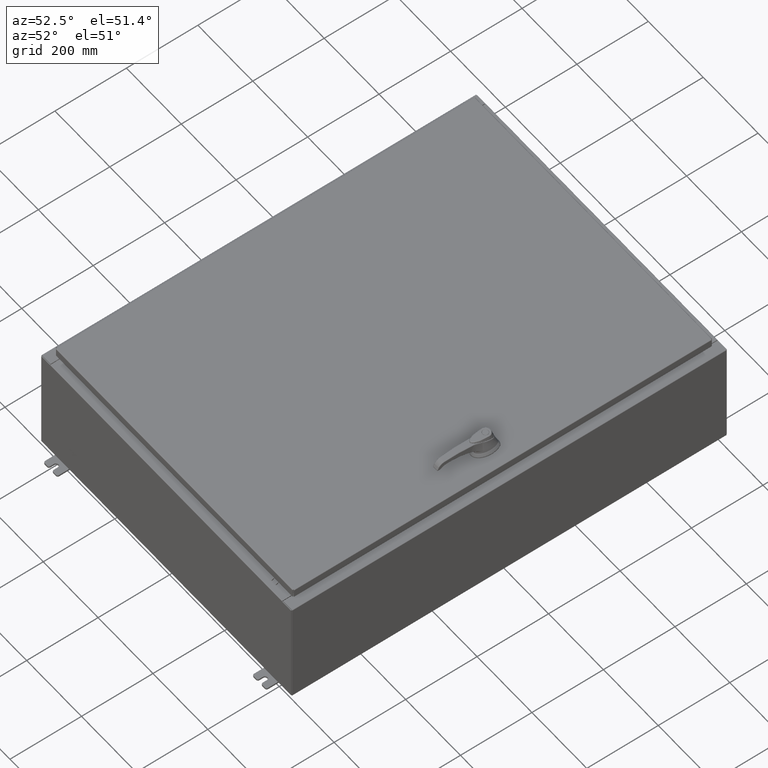
[diagram: clean part render]
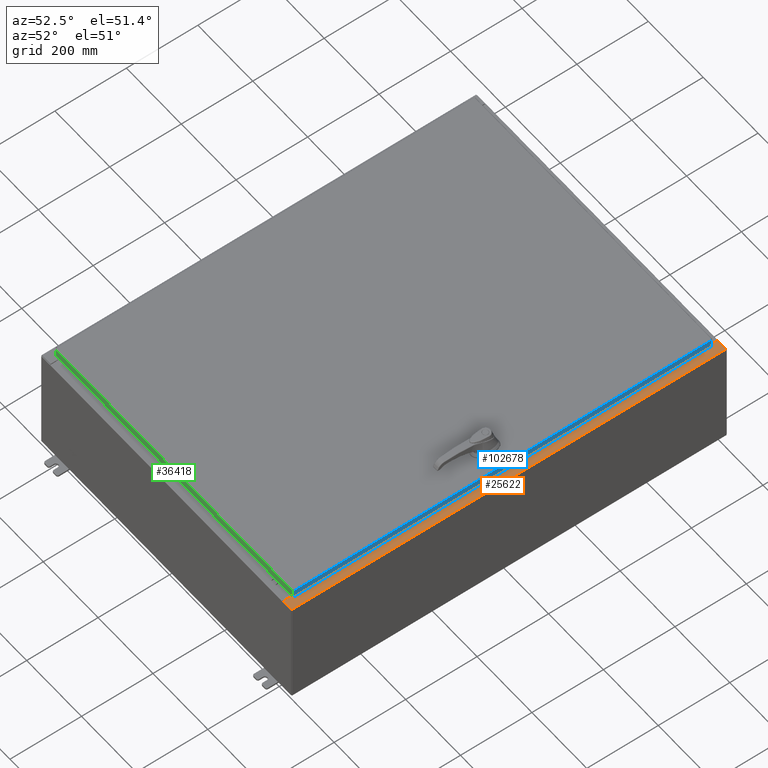
[diagram: same view with three faces highlighted in distinct colors, each labeled with its STEP entity id]
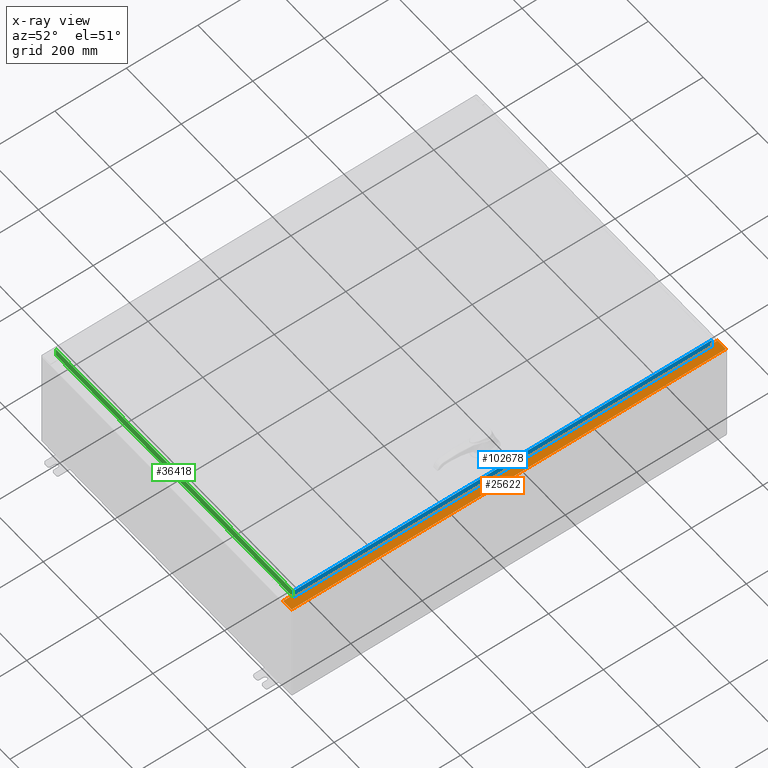
[diagram: x-ray of the same camera — body ghosted, the three highlighted faces saturated]
A machine part, auxiliary view with three faces highlighted in distinct colors.
The next image is the same camera in x-ray (body ghosted, the three faces saturated) — at least one of them is partly hidden behind the body in this view.
Their STEP definitions:

[orange] entity #25622 — the highlighted planar face has unit normal (-0, 0, -1).
#409 = LINE ( 'NONE', #119186, #97715 ) ;
#599 = ORIENTED_EDGE ( 'NONE', *, *, #121378, .F. ) ;
#1169 = CARTESIAN_POINT ( 'NONE',  ( 16.69970000000003900, -23.92529999999998900, 11.92530000000000900 ) ) ;
#2486 = EDGE_CURVE ( 'NONE', #41376, #67230, #73288, .T. ) ;
#9869 = EDGE_CURVE ( 'NONE', #110652, #97780, #79567, .T. ) ;
#10038 = DIRECTION ( 'NONE',  ( -1.000000000000000000, 0.0000000000000000000, 0.0000000000000000000 ) ) ;
#11656 = DIRECTION ( 'NONE',  ( -1.000000000000000000, 0.0000000000000000000, 7.132762385546384700E-015 ) ) ;
#12470 = DIRECTION ( 'NONE',  ( 0.0000000000000000000, -1.000000000000000000, 0.0000000000000000000 ) ) ;
#13792 = EDGE_CURVE ( 'NONE', #110652, #96080, #75656, .T. ) ;
#14112 = ORIENTED_EDGE ( 'NONE', *, *, #9869, .F. ) ;
#14471 = EDGE_CURVE ( 'NONE', #60128, #53273, #51177, .T. ) ;
#18421 = CARTESIAN_POINT ( 'NONE',  ( 16.69970000000003900, 0.0000000000000000000, 11.92530000000000900 ) ) ;
#22085 = CARTESIAN_POINT ( 'NONE',  ( 16.69970000000003900, -22.63109999999998600, 11.92530000000000900 ) ) ;
#25487 = LINE ( 'NONE', #77588, #105004 ) ;
#25610 = ORIENTED_EDGE ( 'NONE', *, *, #45604, .T. ) ;
#25622 = ADVANCED_FACE ( 'NONE', ( #97820 ), #125476, .F. ) ;
#26427 = CARTESIAN_POINT ( 'NONE',  ( 16.71270000000003700, 22.59374999999997200, 11.92530000000001200 ) ) ;
#26859 = CARTESIAN_POINT ( 'NONE',  ( 16.69970000000003900, 23.92529999999998200, 11.92530000000000900 ) ) ;
#32964 = ORIENTED_EDGE ( 'NONE', *, *, #75566, .F. ) ;
#36425 = DIRECTION ( 'NONE',  ( -1.000000000000000000, 0.0000000000000000000, 7.132762385546384700E-015 ) ) ;
#38405 = EDGE_CURVE ( 'NONE', #67230, #131923, #409, .T. ) ;
#41376 = VERTEX_POINT ( 'NONE', #103143 ) ;
#43507 = VECTOR ( 'NONE', #47316, 39.37007874015748100 ) ;
#45604 = EDGE_CURVE ( 'NONE', #96080, #48614, #92359, .T. ) ;
#46746 = DIRECTION ( 'NONE',  ( 7.132762385546384700E-015, 0.0000000000000000000, 1.000000000000000000 ) ) ;
#46864 = CARTESIAN_POINT ( 'NONE',  ( 8.532114493236880700E-014, 23.92529999999998600, 11.92530000000013000 ) ) ;
#47316 = DIRECTION ( 'NONE',  ( 1.000000000000000000, 0.0000000000000000000, 0.0000000000000000000 ) ) ;
#48045 = VECTOR ( 'NONE', #111796, 39.37007874015748100 ) ;
#48614 = VERTEX_POINT ( 'NONE', #55971 ) ;
#49575 = ORIENTED_EDGE ( 'NONE', *, *, #2486, .F. ) ;
#50361 = EDGE_CURVE ( 'NONE', #60128, #48614, #69103, .T. ) ;
#51177 = LINE ( 'NONE', #46864, #106350 ) ;
#51279 = DIRECTION ( 'NONE',  ( 7.132762385546384700E-015, 0.0000000000000000000, 1.000000000000000000 ) ) ;
#53122 = LINE ( 'NONE', #126282, #77475 ) ;
#53273 = VERTEX_POINT ( 'NONE', #26859 ) ;
#55971 = CARTESIAN_POINT ( 'NONE',  ( 17.91230000000003700, -23.92529999999998900, 11.92530000000000400 ) ) ;
#56038 = ORIENTED_EDGE ( 'NONE', *, *, #104532, .F. ) ;
#60128 = VERTEX_POINT ( 'NONE', #90505 ) ;
#61653 = ORIENTED_EDGE ( 'NONE', *, *, #62090, .F. ) ;
#62090 = EDGE_CURVE ( 'NONE', #82067, #41376, #71088, .T. ) ;
#62772 = EDGE_CURVE ( 'NONE', #53273, #131923, #53122, .T. ) ;
#63379 = CARTESIAN_POINT ( 'NONE',  ( 8.532114493236880700E-014, 0.0000000000000000000, 11.92530000000013000 ) ) ;
#64799 = VECTOR ( 'NONE', #96102, 39.37007874015748100 ) ;
#67230 = VERTEX_POINT ( 'NONE', #106698 ) ;
#69103 = LINE ( 'NONE', #101436, #86945 ) ;
#69124 = CARTESIAN_POINT ( 'NONE',  ( 16.69970000000003900, 22.63109999999996800, 11.92530000000000900 ) ) ;
#71088 = LINE ( 'NONE', #26427, #43507 ) ;
#73288 = CIRCLE ( 'NONE', #124072, 0.01867499999999949400 ) ;
#73811 = DIRECTION ( 'NONE',  ( -7.132762385546384700E-015, 0.0000000000000000000, -1.000000000000000000 ) ) ;
#75566 = EDGE_CURVE ( 'NONE', #97780, #99724, #96604, .T. ) ;
#75656 = LINE ( 'NONE', #18421, #48045 ) ;
#77475 = VECTOR ( 'NONE', #12470, 39.37007874015748100 ) ;
#77588 = CARTESIAN_POINT ( 'NONE',  ( 16.71270000000003700, -22.59374999999998900, 11.92530000000001200 ) ) ;
#79567 = LINE ( 'NONE', #86047, #107123 ) ;
#82067 = VERTEX_POINT ( 'NONE', #113290 ) ;
#82638 = CARTESIAN_POINT ( 'NONE',  ( 16.75005000000003700, -22.59374999999998900, 11.92530000000001200 ) ) ;
#83700 = LINE ( 'NONE', #82638, #104746 ) ;
#86047 = CARTESIAN_POINT ( 'NONE',  ( 16.69970000000003900, -22.63109999999998600, 11.92530000000000900 ) ) ;
#86945 = VECTOR ( 'NONE', #111825, 39.37007874015748100 ) ;
#90505 = CARTESIAN_POINT ( 'NONE',  ( 17.91230000000003700, 23.92529999999998600, 11.92530000000000400 ) ) ;
#92359 = LINE ( 'NONE', #116506, #64799 ) ;
#94301 = CARTESIAN_POINT ( 'NONE',  ( 16.75005000000003700, -22.59374999999998900, 11.92530000000000900 ) ) ;
#96080 = VERTEX_POINT ( 'NONE', #1169 ) ;
#96102 = DIRECTION ( 'NONE',  ( 1.000000000000000000, 0.0000000000000000000, -7.132762385546384700E-015 ) ) ;
#96432 = DIRECTION ( 'NONE',  ( 1.000000000000000000, 0.0000000000000000000, 4.340572780400098900E-014 ) ) ;
#96604 = CIRCLE ( 'NONE', #121697, 0.01867499999999949400 ) ;
#97715 = VECTOR ( 'NONE', #129624, 39.37007874015748100 ) ;
#97780 = VERTEX_POINT ( 'NONE', #128964 ) ;
#97820 = FACE_OUTER_BOUND ( 'NONE', #106664, .T. ) ;
#99724 = VERTEX_POINT ( 'NONE', #94301 ) ;
#100479 = ORIENTED_EDGE ( 'NONE', *, *, #38405, .F. ) ;
#101436 = CARTESIAN_POINT ( 'NONE',  ( 17.91230000000003700, -23.92529999999998900, 11.92530000000000400 ) ) ;
#101980 = ORIENTED_EDGE ( 'NONE', *, *, #50361, .F. ) ;
#103143 = CARTESIAN_POINT ( 'NONE',  ( 16.75005000000003700, 22.59374999999997200, 11.92530000000000900 ) ) ;
#104187 = CARTESIAN_POINT ( 'NONE',  ( 16.71270000000003700, -22.59374999999998900, 11.92530000000001200 ) ) ;
#104532 = EDGE_CURVE ( 'NONE', #99724, #112108, #83700, .T. ) ;
#104746 = VECTOR ( 'NONE', #10038, 39.37007874015748100 ) ;
#105004 = VECTOR ( 'NONE', #129666, 39.37007874015748100 ) ;
#106350 = VECTOR ( 'NONE', #36425, 39.37007874015748100 ) ;
#106664 = EDGE_LOOP ( 'NONE', ( #14112, #119306, #25610, #101980, #113085, #124789, #100479, #49575, #61653, #599, #56038, #32964 ) ) ;
#106698 = CARTESIAN_POINT ( 'NONE',  ( 16.75005000000003700, 22.63109999999996800, 11.92530000000000900 ) ) ;
#107123 = VECTOR ( 'NONE', #96432, 39.37007874015748100 ) ;
#108844 = CARTESIAN_POINT ( 'NONE',  ( 16.75005000000003700, 22.61242499999997000, 11.92530000000001200 ) ) ;
#110652 = VERTEX_POINT ( 'NONE', #22085 ) ;
#110943 = AXIS2_PLACEMENT_3D ( 'NONE', #63379, #73811, #11656 ) ;
#111796 = DIRECTION ( 'NONE',  ( 0.0000000000000000000, -1.000000000000000000, 0.0000000000000000000 ) ) ;
#111825 = DIRECTION ( 'NONE',  ( -0.0000000000000000000, -1.000000000000000000, -0.0000000000000000000 ) ) ;
#112108 = VERTEX_POINT ( 'NONE', #104187 ) ;
#113085 = ORIENTED_EDGE ( 'NONE', *, *, #14471, .T. ) ;
#113290 = CARTESIAN_POINT ( 'NONE',  ( 16.71270000000003700, 22.59374999999997200, 11.92530000000001200 ) ) ;
#113394 = CARTESIAN_POINT ( 'NONE',  ( 16.75005000000003700, -22.61242499999998800, 11.92530000000001200 ) ) ;
#116506 = CARTESIAN_POINT ( 'NONE',  ( 8.532114493236880700E-014, -23.92529999999998900, 11.92530000000013000 ) ) ;
#119186 = CARTESIAN_POINT ( 'NONE',  ( 16.75005000000003700, 22.63109999999996800, 11.92530000000001200 ) ) ;
#119235 = DIRECTION ( 'NONE',  ( 1.000000000000000000, 0.0000000000000000000, 0.0000000000000000000 ) ) ;
#119306 = ORIENTED_EDGE ( 'NONE', *, *, #13792, .T. ) ;
#121378 = EDGE_CURVE ( 'NONE', #112108, #82067, #25487, .T. ) ;
#121697 = AXIS2_PLACEMENT_3D ( 'NONE', #113394, #51279, #123812 ) ;
#123812 = DIRECTION ( 'NONE',  ( 1.000000000000000000, 0.0000000000000000000, 0.0000000000000000000 ) ) ;
#124072 = AXIS2_PLACEMENT_3D ( 'NONE', #108844, #46746, #119235 ) ;
#124789 = ORIENTED_EDGE ( 'NONE', *, *, #62772, .T. ) ;
#125476 = PLANE ( 'NONE',  #110943 ) ;
#126282 = CARTESIAN_POINT ( 'NONE',  ( 16.69970000000003900, 0.0000000000000000000, 11.92530000000000900 ) ) ;
#128964 = CARTESIAN_POINT ( 'NONE',  ( 16.75005000000003700, -22.63109999999998600, 11.92530000000000900 ) ) ;
#129624 = DIRECTION ( 'NONE',  ( -1.000000000000000000, 0.0000000000000000000, -4.340572780400098900E-014 ) ) ;
#129666 = DIRECTION ( 'NONE',  ( -0.0000000000000000000, 1.000000000000000000, -0.0000000000000000000 ) ) ;
#131923 = VERTEX_POINT ( 'NONE', #69124 ) ;

[blue] entity #102678 — the highlighted planar face has unit normal (1, 0, 0).
#1371 = EDGE_CURVE ( 'NONE', #131865, #125438, #16634, .T. ) ;
#2882 = CARTESIAN_POINT ( 'NONE',  ( 17.07800000000000300, -23.00515786437626200, -0.9376999999999997600 ) ) ;
#6666 = DIRECTION ( 'NONE',  ( 0.0000000000000000000, -1.000000000000000000, 0.0000000000000000000 ) ) ;
#8051 = VECTOR ( 'NONE', #33885, 39.37007874015748100 ) ;
#16634 = LINE ( 'NONE', #73019, #71867 ) ;
#17035 = EDGE_CURVE ( 'NONE', #82550, #28728, #62128, .T. ) ;
#28028 = VECTOR ( 'NONE', #105569, 39.37007874015748100 ) ;
#28728 = VERTEX_POINT ( 'NONE', #2882 ) ;
#33885 = DIRECTION ( 'NONE',  ( -2.532419924601866100E-015, -6.982962677686265900E-015, 1.000000000000000000 ) ) ;
#40947 = EDGE_CURVE ( 'NONE', #28728, #125438, #63260, .T. ) ;
#45855 = LINE ( 'NONE', #54190, #97754 ) ;
#53889 = CARTESIAN_POINT ( 'NONE',  ( 17.07800000000000300, -23.09400000000000100, -0.9376999999999997600 ) ) ;
#54190 = CARTESIAN_POINT ( 'NONE',  ( 17.07799999999999900, 23.00515786437627600, 2.041536398895824600E-013 ) ) ;
#57568 = ORIENTED_EDGE ( 'NONE', *, *, #17035, .F. ) ;
#62128 = LINE ( 'NONE', #53889, #28028 ) ;
#63222 = DIRECTION ( 'NONE',  ( 2.532419924601866100E-015, 0.0000000000000000000, -1.000000000000000000 ) ) ;
#63260 = LINE ( 'NONE', #75152, #8051 ) ;
#71867 = VECTOR ( 'NONE', #6666, 39.37007874015748100 ) ;
#73019 = CARTESIAN_POINT ( 'NONE',  ( 17.07799999999999900, 0.0000000000000000000, -0.08770000000000008300 ) ) ;
#75152 = CARTESIAN_POINT ( 'NONE',  ( 17.07799999999999900, -23.00515786437626900, -0.07469999999999980800 ) ) ;
#82550 = VERTEX_POINT ( 'NONE', #98254 ) ;
#85050 = DIRECTION ( 'NONE',  ( -2.532419924601866100E-015, -6.982962677686265900E-015, 1.000000000000000000 ) ) ;
#87003 = AXIS2_PLACEMENT_3D ( 'NONE', #114888, #125331, #63222 ) ;
#93922 = ORIENTED_EDGE ( 'NONE', *, *, #1371, .T. ) ;
#94151 = EDGE_LOOP ( 'NONE', ( #120510, #57568, #95035, #93922 ) ) ;
#95035 = ORIENTED_EDGE ( 'NONE', *, *, #127340, .T. ) ;
#97754 = VECTOR ( 'NONE', #85050, 39.37007874015748100 ) ;
#98254 = CARTESIAN_POINT ( 'NONE',  ( 17.07800000000000300, 23.00515786437628000, -0.9376999999999997600 ) ) ;
#102678 = ADVANCED_FACE ( 'NONE', ( #127721 ), #104494, .T. ) ;
#104494 = PLANE ( 'NONE',  #87003 ) ;
#105569 = DIRECTION ( 'NONE',  ( 0.0000000000000000000, -1.000000000000000000, 0.0000000000000000000 ) ) ;
#114888 = CARTESIAN_POINT ( 'NONE',  ( 17.07799999999999900, 0.0000000000000000000, 4.350948112836224800E-014 ) ) ;
#120325 = CARTESIAN_POINT ( 'NONE',  ( 17.07799999999999900, 23.00515786437627200, -0.08770000000000008300 ) ) ;
#120510 = ORIENTED_EDGE ( 'NONE', *, *, #40947, .F. ) ;
#125331 = DIRECTION ( 'NONE',  ( 1.000000000000000000, 0.0000000000000000000, 2.532419924601866100E-015 ) ) ;
#125438 = VERTEX_POINT ( 'NONE', #131579 ) ;
#127340 = EDGE_CURVE ( 'NONE', #82550, #131865, #45855, .T. ) ;
#127721 = FACE_OUTER_BOUND ( 'NONE', #94151, .T. ) ;
#131579 = CARTESIAN_POINT ( 'NONE',  ( 17.07799999999999900, -23.00515786437626900, -0.08770000000000008300 ) ) ;
#131865 = VERTEX_POINT ( 'NONE', #120325 ) ;

[green] entity #36418 — the highlighted planar face has unit normal (-0, 1, -0).
#1600 = CARTESIAN_POINT ( 'NONE',  ( 16.98915786437626700, -23.09400000000000100, -0.08769999999999550400 ) ) ;
#2590 = CARTESIAN_POINT ( 'NONE',  ( 1.496836577439703600E-029, -23.09400000000000100, 1.172282251335225800E-013 ) ) ;
#12022 = DIRECTION ( 'NONE',  ( -1.000000000000000000, 8.758115402030108600E-047, 1.279703943630056800E-016 ) ) ;
#16230 = ORIENTED_EDGE ( 'NONE', *, *, #19471, .F. ) ;
#16962 = CARTESIAN_POINT ( 'NONE',  ( 16.98915786437626700, -23.09400000000000500, -0.9376999999999997600 ) ) ;
#19471 = EDGE_CURVE ( 'NONE', #120814, #123422, #67744, .T. ) ;
#22620 = EDGE_CURVE ( 'NONE', #75096, #120814, #117686, .T. ) ;
#25716 = CARTESIAN_POINT ( 'NONE',  ( -16.98915786437626700, -23.09400000000000500, -0.9376999999999954300 ) ) ;
#26552 = CARTESIAN_POINT ( 'NONE',  ( 17.07799999999999900, -23.09400000000000100, -0.08769999999999550400 ) ) ;
#33908 = DIRECTION ( 'NONE',  ( -6.481495528880676900E-031, 1.000000000000000000, -5.064839849203732200E-015 ) ) ;
#35910 = DIRECTION ( 'NONE',  ( 0.0000000000000000000, -5.064839849203732200E-015, -1.000000000000000000 ) ) ;
#36418 = ADVANCED_FACE ( 'NONE', ( #68838 ), #85606, .F. ) ;
#38195 = VECTOR ( 'NONE', #99140, 39.37007874015748100 ) ;
#38776 = VERTEX_POINT ( 'NONE', #25716 ) ;
#42373 = CARTESIAN_POINT ( 'NONE',  ( -16.98915786437626700, -23.09400000000000100, -0.08769999999999550400 ) ) ;
#48366 = LINE ( 'NONE', #108462, #79249 ) ;
#61340 = AXIS2_PLACEMENT_3D ( 'NONE', #2590, #33908, #106443 ) ;
#64345 = CARTESIAN_POINT ( 'NONE',  ( 16.98915786437626700, -23.09400000000000100, -0.07469999999999962800 ) ) ;
#67332 = ORIENTED_EDGE ( 'NONE', *, *, #120838, .F. ) ;
#67744 = LINE ( 'NONE', #64345, #70998 ) ;
#67812 = LINE ( 'NONE', #105436, #119665 ) ;
#68357 = ORIENTED_EDGE ( 'NONE', *, *, #22620, .F. ) ;
#68838 = FACE_OUTER_BOUND ( 'NONE', #68884, .T. ) ;
#68884 = EDGE_LOOP ( 'NONE', ( #68357, #83079, #67332, #16230 ) ) ;
#70998 = VECTOR ( 'NONE', #126417, 39.37007874015748100 ) ;
#75096 = VERTEX_POINT ( 'NONE', #42373 ) ;
#79249 = VECTOR ( 'NONE', #35910, 39.37007874015748100 ) ;
#83079 = ORIENTED_EDGE ( 'NONE', *, *, #130791, .T. ) ;
#85606 = PLANE ( 'NONE',  #61340 ) ;
#99140 = DIRECTION ( 'NONE',  ( 1.000000000000000000, 6.481495528880677800E-031, -3.349804276043092000E-045 ) ) ;
#105436 = CARTESIAN_POINT ( 'NONE',  ( 17.07799999999999900, -23.09400000000000500, -0.9376999999999997600 ) ) ;
#106443 = DIRECTION ( 'NONE',  ( 0.0000000000000000000, 5.064839849203732200E-015, 1.000000000000000000 ) ) ;
#108462 = CARTESIAN_POINT ( 'NONE',  ( -16.98915786437627100, -23.09400000000000100, 1.172282251335225800E-013 ) ) ;
#117686 = LINE ( 'NONE', #26552, #38195 ) ;
#119665 = VECTOR ( 'NONE', #12022, 39.37007874015748100 ) ;
#120814 = VERTEX_POINT ( 'NONE', #1600 ) ;
#120838 = EDGE_CURVE ( 'NONE', #123422, #38776, #67812, .T. ) ;
#123422 = VERTEX_POINT ( 'NONE', #16962 ) ;
#126417 = DIRECTION ( 'NONE',  ( -0.0000000000000000000, -5.064839849203732200E-015, -1.000000000000000000 ) ) ;
#130791 = EDGE_CURVE ( 'NONE', #75096, #38776, #48366, .T. ) ;